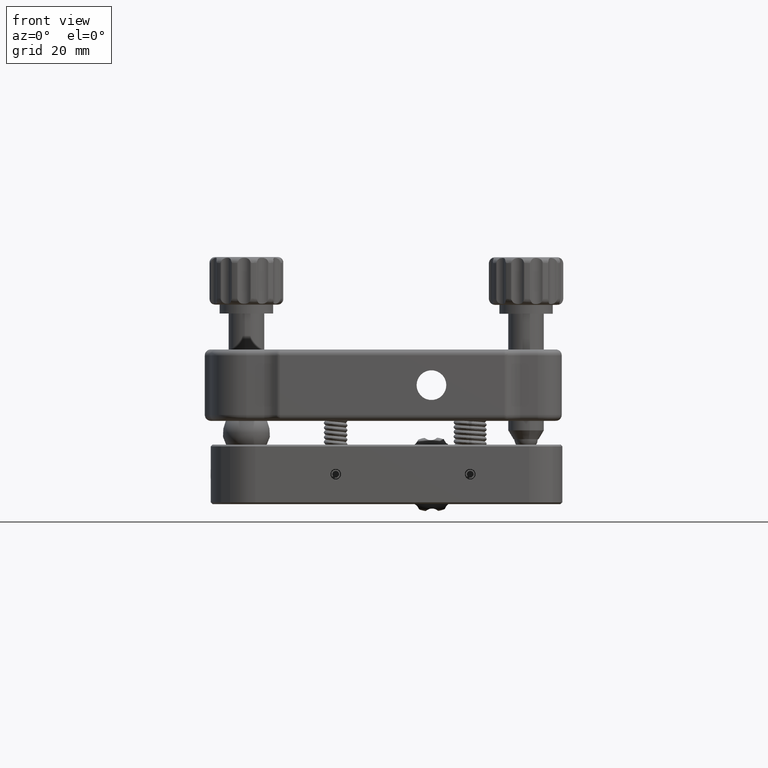
[diagram: clean part render]
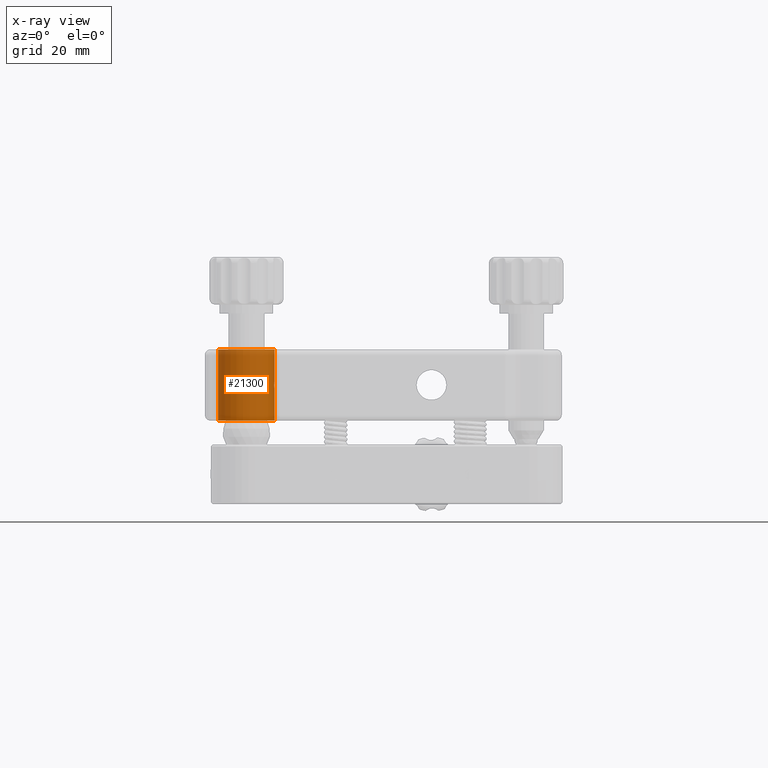
[diagram: x-ray — body ghosted, one internal face saturated and labeled with its STEP entity id]
A machine part, front view, then the same camera in x-ray: the body is ghosted and one INTERNAL B-rep face — a face not visible from any outside direction — is saturated and labeled: STEP entity #21300.
In plain terms, the highlighted cylindrical surface (bore or boss wall) has radius 4.75 mm, axis along (-0, 0, -1).
Its self-contained STEP definition (entity closure, byte-faithful):
#317 = B_SPLINE_CURVE_WITH_KNOTS ( 'NONE', 3,
 ( #3052, #12271, #8712, #2695, #2934, #10301, #14120, #21703, #13869, #10420, #12150, #23173, #16178, #2818, #17889, #15818, #8468, #17765, #6739, #743, #10187, #23657, #981, #17530, #8346, #19614, #6381, #8225, #6498, #21340, #13991, #21588 ),
 .UNSPECIFIED., .T., .F.,
 ( 4, 2, 2, 2, 2, 2, 2, 2, 2, 2, 2, 2, 2, 2, 2, 4 ),
 ( 0.000000000000000000, 0.0003131649341453286348, 0.0006263298682906572696, 0.0009394948024359858502, 0.001252659736581314539, 0.001565824670726643011, 0.001878989604871971700, 0.002192154539017300389, 0.002505319473162629079, 0.002818484407307957334, 0.003131649341453286023, 0.003444814275598615146, 0.003757979209743943401, 0.004071144143889271656, 0.004384309078034600779, 0.005010638946325271167 ),
 .UNSPECIFIED. ) ;
#705 = AXIS2_PLACEMENT_3D ( 'NONE', #10933, #1606, #6129 ) ;
#743 = CARTESIAN_POINT ( 'NONE',  ( 11.73391846160783025, 53.59771701599653682, 0.6993102473751455772 ) ) ;
#848 = VERTEX_POINT ( 'NONE', #8331 ) ;
#981 = CARTESIAN_POINT ( 'NONE',  ( 11.69856431139901254, 53.30167358920374454, 0.4041843972555723141 ) ) ;
#1380 = AXIS2_PLACEMENT_3D ( 'NONE', #4787, #19624, #6869 ) ;
#1606 = DIRECTION ( 'NONE',  ( -4.440892098500626162E-16, 3.389637024493713281E-31, -1.000000000000000000 ) ) ;
#2319 = VERTEX_POINT ( 'NONE', #2677 ) ;
#2621 = ORIENTED_EDGE ( 'NONE', *, *, #12760, .T. ) ;
#2677 = CARTESIAN_POINT ( 'NONE',  ( 2.250000000000015987, 54.00000000000000711, -6.000000000000038192 ) ) ;
#2695 = CARTESIAN_POINT ( 'NONE',  ( 11.73382671692520596, 54.40348606319534497, -0.6987068162058029941 ) ) ;
#2818 = CARTESIAN_POINT ( 'NONE',  ( 11.72510934646943959, 54.49139189968820318, 0.6400231480399126704 ) ) ;
#2934 = CARTESIAN_POINT ( 'NONE',  ( 11.72502112492152726, 54.49211471093902048, -0.6392752740690271773 ) ) ;
#3052 = CARTESIAN_POINT ( 'NONE',  ( 11.75000000000006573, 54.00000000000000711, -0.7999999999999942712 ) ) ;
#3297 = CYLINDRICAL_SURFACE ( 'NONE', #19369, 4.750000000000020428 ) ;
#4403 = CARTESIAN_POINT ( 'NONE',  ( 2.250000000000015987, 54.00000000000000711, 6.000000000000034639 ) ) ;
#4787 = CARTESIAN_POINT ( 'NONE',  ( 7.000000000000036415, 54.00000000000000711, 6.000000000000036415 ) ) ;
#6129 = DIRECTION ( 'NONE',  ( -1.000000000000000000, 0.000000000000000000, -3.652049423109052049E-16 ) ) ;
#6185 = EDGE_LOOP ( 'NONE', ( #16888 ) ) ;
#6381 = CARTESIAN_POINT ( 'NONE',  ( 11.68582609038167242, 53.22078352639741894, -0.2092566694879652855 ) ) ;
#6498 = CARTESIAN_POINT ( 'NONE',  ( 11.70731374573410477, 53.36032352612132712, -0.4915812012259069830 ) ) ;
#6739 = CARTESIAN_POINT ( 'NONE',  ( 11.74635258218429534, 53.79035085031736685, 0.7790466323269489290 ) ) ;
#6869 = DIRECTION ( 'NONE',  ( -1.000000000000000000, 0.000000000000000000, -3.652049423109052049E-16 ) ) ;
#7847 = VERTEX_POINT ( 'NONE', #4403 ) ;
#8225 = CARTESIAN_POINT ( 'NONE',  ( 11.69844686143755830, 53.30089946911562748, -0.4027717892008341183 ) ) ;
#8331 = CARTESIAN_POINT ( 'NONE',  ( 11.75000000000007105, 54.00000000000000000, -0.7999999999999943823 ) ) ;
#8346 = CARTESIAN_POINT ( 'NONE',  ( 11.68216143007513708, 53.20008478569857147, 0.1063597218671891026 ) ) ;
#8351 = CARTESIAN_POINT ( 'NONE',  ( 7.000000000000036415, 54.00000000000000711, 6.000000000000036415 ) ) ;
#8468 = CARTESIAN_POINT ( 'NONE',  ( 11.74999309231055733, 54.10482450124435161, 0.7999589855906866775 ) ) ;
#8712 = CARTESIAN_POINT ( 'NONE',  ( 11.74635588197756242, 54.20981475325822174, -0.7790827860506912561 ) ) ;
#8715 = FACE_BOUND ( 'NONE', #11078, .T. ) ;
#9031 = EDGE_LOOP ( 'NONE', ( #2621 ) ) ;
#9950 = EDGE_CURVE ( 'NONE', #7847, #7847, #19393, .T. ) ;
#10187 = CARTESIAN_POINT ( 'NONE',  ( 11.72510265125485951, 53.50864353371425608, 0.6398788291730828082 ) ) ;
#10301 = CARTESIAN_POINT ( 'NONE',  ( 11.70735223985396622, 54.63940316672589859, -0.4919485289534915595 ) ) ;
#10420 = CARTESIAN_POINT ( 'NONE',  ( 11.68213667056836336, 54.80006012390082049, 0.1040904139334322270 ) ) ;
#10786 = FACE_OUTER_BOUND ( 'NONE', #9031, .T. ) ;
#10933 = CARTESIAN_POINT ( 'NONE',  ( 7.000000000000036415, 54.00000000000000711, -6.000000000000036415 ) ) ;
#11078 = EDGE_LOOP ( 'NONE', ( #14884 ) ) ;
#12150 = CARTESIAN_POINT ( 'NONE',  ( 11.68581147580259483, 54.77930888547259514, 0.2090276443928484607 ) ) ;
#12271 = CARTESIAN_POINT ( 'NONE',  ( 11.75000000000007105, 54.10590567270954665, -0.7999999999999942712 ) ) ;
#12394 = FACE_OUTER_BOUND ( 'NONE', #6185, .T. ) ;
#12455 = CIRCLE ( 'NONE', #705, 4.750000000000020428 ) ;
#12760 = EDGE_CURVE ( 'NONE', #2319, #2319, #12455, .T. ) ;
#13869 = CARTESIAN_POINT ( 'NONE',  ( 11.68215726172243585, 54.79993961036886674, -0.1050125511162092323 ) ) ;
#13991 = CARTESIAN_POINT ( 'NONE',  ( 11.75000000000005862, 53.78818865458091381, -0.7999999999999946043 ) ) ;
#14120 = CARTESIAN_POINT ( 'NONE',  ( 11.69846459002167549, 54.69897375360555714, -0.4028493659326723986 ) ) ;
#14884 = ORIENTED_EDGE ( 'NONE', *, *, #15347, .T. ) ;
#15347 = EDGE_CURVE ( 'NONE', #848, #848, #317, .T. ) ;
#15818 = CARTESIAN_POINT ( 'NONE',  ( 11.74635309756357948, 54.20984204028701470, 0.7790638299310321813 ) ) ;
#16178 = CARTESIAN_POINT ( 'NONE',  ( 11.70724134694678042, 54.64031495122848980, 0.4910116010232247752 ) ) ;
#16888 = ORIENTED_EDGE ( 'NONE', *, *, #9950, .F. ) ;
#17530 = CARTESIAN_POINT ( 'NONE',  ( 11.68586849504368175, 53.22102451160184700, 0.2102902553026992361 ) ) ;
#17765 = CARTESIAN_POINT ( 'NONE',  ( 11.75000688700079721, 53.89580246402111641, 0.8000408915701351376 ) ) ;
#17889 = CARTESIAN_POINT ( 'NONE',  ( 11.73383593200002473, 54.40335936524233773, 0.6987670251592763560 ) ) ;
#19369 = AXIS2_PLACEMENT_3D ( 'NONE', #8351, #21592, #21949 ) ;
#19393 = CIRCLE ( 'NONE', #1380, 4.750000000000020428 ) ;
#19614 = CARTESIAN_POINT ( 'NONE',  ( 11.68213254419838520, 53.19991572574347316, -0.1050804196506799071 ) ) ;
#19624 = DIRECTION ( 'NONE',  ( -4.440892098500626162E-16, 3.389637024493713281E-31, -1.000000000000000000 ) ) ;
#21300 = ADVANCED_FACE ( 'NONE', ( #8715, #12394, #10786 ), #3297, .F. ) ;
#21340 = CARTESIAN_POINT ( 'NONE',  ( 11.73380299642975721, 53.58099646894554979, -0.7125926715131190026 ) ) ;
#21588 = CARTESIAN_POINT ( 'NONE',  ( 11.75000000000006573, 54.00000000000000711, -0.7999999999999942712 ) ) ;
#21592 = DIRECTION ( 'NONE',  ( -4.440892098500626162E-16, 3.389637024493713281E-31, -1.000000000000000000 ) ) ;
#21703 = CARTESIAN_POINT ( 'NONE',  ( 11.68588911665173669, 54.77883053250486967, -0.2104160675898950061 ) ) ;
#21949 = DIRECTION ( 'NONE',  ( -1.000000000000000000, 0.000000000000000000, -3.652049423109052049E-16 ) ) ;
#23173 = CARTESIAN_POINT ( 'NONE',  ( 11.69845943462632398, 54.69902107758679222, 0.4029695127256084364 ) ) ;
#23657 = CARTESIAN_POINT ( 'NONE',  ( 11.70741263661824405, 53.36102229267098807, 0.4925277479709362360 ) ) ;